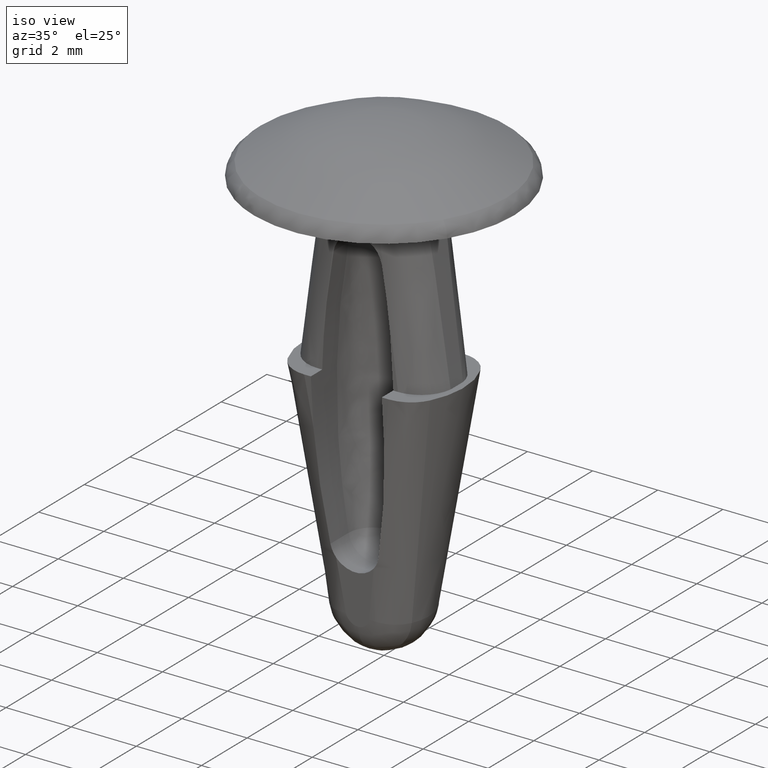
[diagram: clean part render]
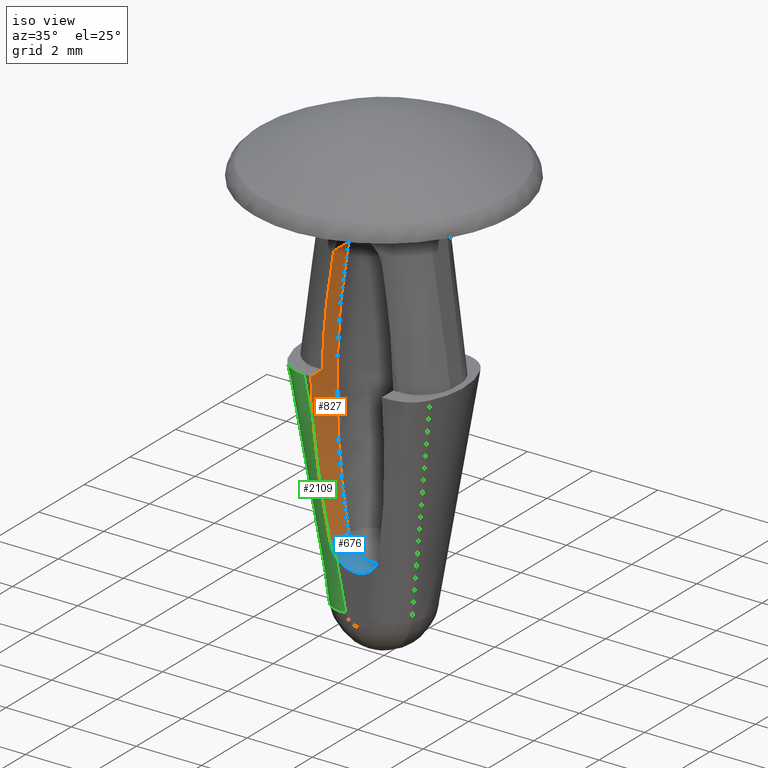
[diagram: same view with three faces highlighted in distinct colors, each labeled with its STEP entity id]
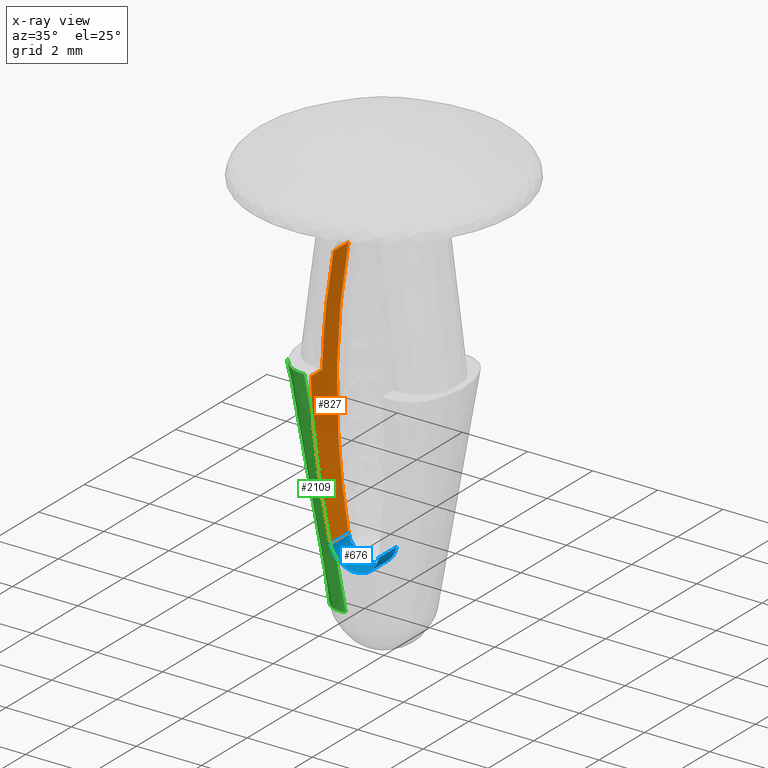
[diagram: x-ray of the same camera — body ghosted, the three highlighted faces saturated]
A machine part, iso view with three faces highlighted in distinct colors.
The next image is the same camera in x-ray (body ghosted, the three faces saturated) — at least one of them is partly hidden behind the body in this view.
Their STEP definitions:

[orange] entity #827 — the highlighted face is a freeform B-spline surface patch.
#444=CARTESIAN_POINT('',(-0.738017438590745,-0.500000000000000,-1.816457897339955));
#445=VERTEX_POINT('',#444);
#508=CARTESIAN_POINT('',(-0.738017720184995,-0.500000000000000,-9.883538546413352));
#509=VERTEX_POINT('',#508);
#510=CARTESIAN_POINT('',(-0.738017438590744,-0.500000000000000,-1.816457897339955));
#511=CARTESIAN_POINT('',(-1.467864544828203,-0.500000000000000,-5.849998196400194));
#512=CARTESIAN_POINT('',(-0.738017720185002,-0.500000000000000,-9.883538546413350));
#520=(BOUNDED_CURVE()B_SPLINE_CURVE(2,(#510,#511,#512),.UNSPECIFIED.,.F.,.U.)CURVE()GEOMETRIC_REPRESENTATION_ITEM()QUASI_UNIFORM_CURVE()RATIONAL_B_SPLINE_CURVE((1.0,0.984020867852005,1.0))REPRESENTATION_ITEM(''));
#521=EDGE_CURVE('',#445,#509,#520,.T.);
#626=CARTESIAN_POINT('',(-0.738015949811334,-1.293734289096232,-9.883538226078059));
#627=VERTEX_POINT('',#626);
#628=CARTESIAN_POINT('',(-0.738015949811334,-1.293734289096232,-9.883538226078059));
#629=CARTESIAN_POINT('',(-0.738017720184995,-0.500000000000000,-9.883538546413352));
#630=QUASI_UNIFORM_CURVE('',1,(#628,#629),.UNSPECIFIED.,.F.,.U.);
#631=EDGE_CURVE('',#627,#509,#630,.T.);
#753=CARTESIAN_POINT('',(-0.662859083940141,-1.678751025000000,-1.421161328844831));
#754=CARTESIAN_POINT('',(-0.662859083940141,-0.470531224375000,-1.421161328844831));
#755=CARTESIAN_POINT('',(-1.545794041233473,-1.678751025000000,-5.850238057530425));
#756=CARTESIAN_POINT('',(-1.545794041233473,-0.470531224375000,-5.850238057530425));
#757=CARTESIAN_POINT('',(-0.662767410250872,-1.678751025000000,-10.279296510110429));
#758=CARTESIAN_POINT('',(-0.662767410250872,-0.470531224375000,-10.279296510110429));
#766=(BOUNDED_SURFACE()B_SPLINE_SURFACE(1,2,((#753,#755,#757),(#754,#756,#758)),.UNSPECIFIED.,.F.,.F.,.U.)B_SPLINE_SURFACE_WITH_KNOTS((2,2),(3,3),(0.0,1.0),(0.347871889227629,9.292402754670382),.UNSPECIFIED.)GEOMETRIC_REPRESENTATION_ITEM()RATIONAL_B_SPLINE_SURFACE(((0.998396413473935,0.978529512680827,0.997175293409681),(0.998396413473935,0.978529512680827,0.997175293409681)))REPRESENTATION_ITEM('')SURFACE());
#767=CARTESIAN_POINT('',(-0.738017438590745,-1.149993999998600,-1.816457897339955));
#768=VERTEX_POINT('',#767);
#769=CARTESIAN_POINT('',(-1.090674782265978,-1.149993999998600,-5.199997000000000));
#770=VERTEX_POINT('',#769);
#771=CARTESIAN_POINT('',(-0.738017438590745,-1.149993999998600,-1.816457897339955));
#772=CARTESIAN_POINT('',(-1.041731498585435,-1.149993999998600,-3.494950406127401));
#773=CARTESIAN_POINT('',(-1.090674782265981,-1.149993999998600,-5.199997000000011));
#781=(BOUNDED_CURVE()B_SPLINE_CURVE(2,(#771,#772,#773),.UNSPECIFIED.,.F.,.U.)CURVE()GEOMETRIC_REPRESENTATION_ITEM()QUASI_UNIFORM_CURVE()RATIONAL_B_SPLINE_CURVE((1.0,0.997177168979135,1.0))REPRESENTATION_ITEM(''));
#782=EDGE_CURVE('',#768,#770,#781,.T.);
#783=ORIENTED_EDGE('',*,*,#782,.T.);
#784=CARTESIAN_POINT('',(-1.090674782265766,-1.650001000000000,-5.199997000000000));
#785=VERTEX_POINT('',#784);
#786=CARTESIAN_POINT('',(-1.090674782265978,-1.149993999998600,-5.199997000000000));
#787=CARTESIAN_POINT('',(-1.090674782265766,-1.650001000000000,-5.199997000000000));
#788=QUASI_UNIFORM_CURVE('',1,(#786,#787),.UNSPECIFIED.,.F.,.U.);
#789=EDGE_CURVE('',#770,#785,#788,.T.);
#790=ORIENTED_EDGE('',*,*,#789,.T.);
#791=CARTESIAN_POINT('',(-1.085657117991400,-1.541224836504675,-6.656051020149160));
#792=VERTEX_POINT('',#791);
#793=CARTESIAN_POINT('',(-1.085657117991400,-1.541224836504675,-6.656051020149160));
#794=CARTESIAN_POINT('',(-1.111575079559779,-1.595606891748133,-5.928104679572669));
#795=CARTESIAN_POINT('',(-1.090674782265766,-1.650001000000000,-5.199997000000000));
#803=(BOUNDED_CURVE()B_SPLINE_CURVE(2,(#793,#794,#795),.UNSPECIFIED.,.F.,.U.)CURVE()GEOMETRIC_REPRESENTATION_ITEM()QUASI_UNIFORM_CURVE()RATIONAL_B_SPLINE_CURVE((1.0,0.999483454069558,1.0))REPRESENTATION_ITEM(''));
#804=EDGE_CURVE('',#792,#785,#803,.T.);
#805=ORIENTED_EDGE('',*,*,#804,.F.);
#806=CARTESIAN_POINT('',(-0.738015949811334,-1.293734289096232,-9.883538226078059));
#807=CARTESIAN_POINT('',(-0.786271500100103,-1.312516562312461,-9.616851999836625));
#808=CARTESIAN_POINT('',(-0.873124204224920,-1.351043695666410,-9.082240918134502));
#809=CARTESIAN_POINT('',(-0.940724161717931,-1.392409871918340,-8.545230528838852));
#810=CARTESIAN_POINT('',(-0.998701382413399,-1.434791159777087,-8.006990412273982));
#811=CARTESIAN_POINT('',(-1.022880425462399,-1.456494093103143,-7.737184822683948));
#812=CARTESIAN_POINT('',(-1.061531617484356,-1.499593783869857,-7.197135421353046));
#813=CARTESIAN_POINT('',(-1.076017414497608,-1.520998771265125,-6.926792949716260));
#814=CARTESIAN_POINT('',(-1.085657117991400,-1.541224836504675,-6.656051020149160));
#815=B_SPLINE_CURVE_WITH_KNOTS('',3,(#806,#807,#808,#809,#810,#811,#812,#813,#814),.UNSPECIFIED.,.F.,.U.,(4,1,2,2,4),(0.0,0.250000000000000,0.500000000000000,0.750000000000000,1.0),.UNSPECIFIED.);
#816=EDGE_CURVE('',#627,#792,#815,.T.);
#817=ORIENTED_EDGE('',*,*,#816,.F.);
#818=ORIENTED_EDGE('',*,*,#631,.T.);
#819=ORIENTED_EDGE('',*,*,#521,.F.);
#820=CARTESIAN_POINT('',(-0.738017438590745,-1.149993999998600,-1.816457897339955));
#821=CARTESIAN_POINT('',(-0.738017438590745,-0.500000000000000,-1.816457897339955));
#822=QUASI_UNIFORM_CURVE('',1,(#820,#821),.UNSPECIFIED.,.F.,.U.);
#823=EDGE_CURVE('',#768,#445,#822,.T.);
#824=ORIENTED_EDGE('',*,*,#823,.F.);
#825=EDGE_LOOP('',(#783,#790,#805,#817,#818,#819,#824));
#826=FACE_OUTER_BOUND('',#825,.T.);
#827=ADVANCED_FACE('',(#826),#766,.F.);

[blue] entity #676 — the highlighted face is a freeform B-spline surface patch.
#508=CARTESIAN_POINT('',(-0.738017720184995,-0.500000000000000,-9.883538546413352));
#509=VERTEX_POINT('',#508);
#523=CARTESIAN_POINT('',(0.738015690511051,-0.500000000000000,-9.883539659126029));
#524=VERTEX_POINT('',#523);
#581=CARTESIAN_POINT('',(-0.738017720184995,-0.500000000000000,-9.883538546413352));
#582=CARTESIAN_POINT('',(-0.626473749798611,-0.500000000000000,-10.499999687899200));
#583=CARTESIAN_POINT('',(-0.000001613346005,-0.500000000000000,-10.500000160167300));
#584=CARTESIAN_POINT('',(0.626470523106601,-0.500000000000000,-10.500000632435391));
#585=CARTESIAN_POINT('',(0.738015690511051,-0.500000000000000,-9.883539659126029));
#593=(BOUNDED_CURVE()B_SPLINE_CURVE(2,(#581,#582,#583,#584,#585),.UNSPECIFIED.,.F.,.U.)B_SPLINE_CURVE_WITH_KNOTS((3,2,3),(0.0,0.500000000000000,1.0),.UNSPECIFIED.)CURVE()GEOMETRIC_REPRESENTATION_ITEM()RATIONAL_B_SPLINE_CURVE((1.0,0.767480267977449,1.0,0.767480267977449,1.0))REPRESENTATION_ITEM(''));
#594=EDGE_CURVE('',#509,#524,#593,.T.);
#600=CARTESIAN_POINT('',(-0.741768395485807,-1.313577646323638,-9.860813570732155));
#601=CARTESIAN_POINT('',(-0.741768395485807,-0.479660558841909,-9.860813570732155));
#602=CARTESIAN_POINT('',(-0.645439628078285,-1.313577646323638,-10.505622999459188));
#603=CARTESIAN_POINT('',(-0.645439628078285,-0.479660558841909,-10.505622999459188));
#604=CARTESIAN_POINT('',(0.006500932885356,-1.313577646323638,-10.499971824718511));
#605=CARTESIAN_POINT('',(0.006500932885356,-0.479660558841909,-10.499971824718511));
#606=CARTESIAN_POINT('',(0.658441493848996,-1.313577646323638,-10.494320649977841));
#607=CARTESIAN_POINT('',(0.658441493848996,-0.479660558841909,-10.494320649977841));
#608=CARTESIAN_POINT('',(0.743577905463382,-1.313577646323638,-9.847938238225353));
#609=CARTESIAN_POINT('',(0.743577905463382,-0.479660558841909,-9.847938238225353));
#617=(BOUNDED_SURFACE()B_SPLINE_SURFACE(1,2,((#600,#602,#604,#606,#608),(#601,#603,#605,#607,#609)),.UNSPECIFIED.,.F.,.F.,.U.)B_SPLINE_SURFACE_WITH_KNOTS((2,2),(3,2,3),(0.0,1.0),(0.0,1.0,2.0),.UNSPECIFIED.)GEOMETRIC_REPRESENTATION_ITEM()RATIONAL_B_SPLINE_SURFACE(((1.0,0.754709580222772,1.0,0.754709580222772,1.0),(1.0,0.754709580222772,1.0,0.754709580222772,1.0)))REPRESENTATION_ITEM('')SURFACE());
#618=CARTESIAN_POINT('',(0.738015690511051,-1.293734209621532,-9.883539659126029));
#619=VERTEX_POINT('',#618);
#620=CARTESIAN_POINT('',(0.738015690511051,-1.293734209621532,-9.883539659126029));
#621=CARTESIAN_POINT('',(0.738015690511051,-0.500000000000000,-9.883539659126029));
#622=QUASI_UNIFORM_CURVE('',1,(#620,#621),.UNSPECIFIED.,.F.,.U.);
#623=EDGE_CURVE('',#619,#524,#622,.T.);
#624=ORIENTED_EDGE('',*,*,#623,.T.);
#625=ORIENTED_EDGE('',*,*,#594,.F.);
#626=CARTESIAN_POINT('',(-0.738015949811334,-1.293734289096232,-9.883538226078059));
#627=VERTEX_POINT('',#626);
#628=CARTESIAN_POINT('',(-0.738015949811334,-1.293734289096232,-9.883538226078059));
#629=CARTESIAN_POINT('',(-0.738017720184995,-0.500000000000000,-9.883538546413352));
#630=QUASI_UNIFORM_CURVE('',1,(#628,#629),.UNSPECIFIED.,.F.,.U.);
#631=EDGE_CURVE('',#627,#509,#630,.T.);
#632=ORIENTED_EDGE('',*,*,#631,.F.);
#633=CARTESIAN_POINT('',(-0.574505067719825,-1.274070228132522,-10.232124389737120));
#634=VERTEX_POINT('',#633);
#635=CARTESIAN_POINT('',(-0.574505067719825,-1.274070228132522,-10.232124389737120));
#636=CARTESIAN_POINT('',(-0.616512122123696,-1.277809725575460,-10.182068291873740));
#637=CARTESIAN_POINT('',(-0.651201909904588,-1.280179575877374,-10.127657145131680));
#638=CARTESIAN_POINT('',(-0.692505161061631,-1.284446928842074,-10.039799609361650));
#639=CARTESIAN_POINT('',(-0.704509036341137,-1.285983534157370,-10.009282993286080));
#640=CARTESIAN_POINT('',(-0.724332783586732,-1.289495509157599,-9.947237601676761));
#641=CARTESIAN_POINT('',(-0.732203095514177,-1.291471731963233,-9.915663702888903));
#642=CARTESIAN_POINT('',(-0.738015949811334,-1.293734289096232,-9.883538226078059));
#643=B_SPLINE_CURVE_WITH_KNOTS('',3,(#635,#636,#637,#638,#639,#640,#641,#642),.UNSPECIFIED.,.F.,.U.,(4,2,2,4),(0.0,0.499999999999994,0.749999999999997,1.0),.UNSPECIFIED.);
#644=EDGE_CURVE('',#634,#627,#643,.T.);
#645=ORIENTED_EDGE('',*,*,#644,.F.);
#646=CARTESIAN_POINT('',(0.574505067722556,-1.274070228133948,-10.232124389718020));
#647=VERTEX_POINT('',#646);
#648=CARTESIAN_POINT('',(0.574505067722556,-1.274070228133948,-10.232124389718020));
#649=CARTESIAN_POINT('',(0.349703978257832,-1.254058277494877,-10.499999999999011));
#650=CARTESIAN_POINT('',(2.123818E-012,-1.254058277494803,-10.500000000000000));
#651=CARTESIAN_POINT('',(-0.349703978253584,-1.254058277494729,-10.500000000000991));
#652=CARTESIAN_POINT('',(-0.574505067719825,-1.274070228132522,-10.232124389737120));
#660=(BOUNDED_CURVE()B_SPLINE_CURVE(2,(#648,#649,#650,#651,#652),.UNSPECIFIED.,.F.,.U.)B_SPLINE_CURVE_WITH_KNOTS((3,2,3),(0.0,0.500000000000000,1.0),.UNSPECIFIED.)CURVE()GEOMETRIC_REPRESENTATION_ITEM()RATIONAL_B_SPLINE_CURVE((1.0,0.906320175110975,1.0,0.906320175110975,1.0))REPRESENTATION_ITEM(''));
#661=EDGE_CURVE('',#647,#634,#660,.T.);
#662=ORIENTED_EDGE('',*,*,#661,.F.);
#663=CARTESIAN_POINT('',(0.738015690511051,-1.293734209621532,-9.883539659126029));
#664=CARTESIAN_POINT('',(0.726389083026882,-1.289208788557963,-9.947794868454009));
#665=CARTESIAN_POINT('',(0.706750279403987,-1.285935250864256,-10.009215664159591));
#666=CARTESIAN_POINT('',(0.665609266087684,-1.281660095465516,-10.097147640628661));
#667=CARTESIAN_POINT('',(0.649817754740876,-1.280318315440982,-10.125897088998171));
#668=CARTESIAN_POINT('',(0.614768571092984,-1.277459633829956,-10.180837950847019));
#669=CARTESIAN_POINT('',(0.595508167028977,-1.275939938763443,-10.207096850670640));
#670=CARTESIAN_POINT('',(0.574505067722556,-1.274070228133948,-10.232124389718020));
#671=B_SPLINE_CURVE_WITH_KNOTS('',3,(#663,#664,#665,#666,#667,#668,#669,#670),.UNSPECIFIED.,.F.,.U.,(4,2,2,4),(0.0,0.500000000000000,0.750000000000000,1.0),.UNSPECIFIED.);
#672=EDGE_CURVE('',#619,#647,#671,.T.);
#673=ORIENTED_EDGE('',*,*,#672,.F.);
#674=EDGE_LOOP('',(#624,#625,#632,#645,#662,#673));
#675=FACE_OUTER_BOUND('',#674,.T.);
#676=ADVANCED_FACE('',(#675),#617,.F.);

[green] entity #2109 — the highlighted face is a freeform B-spline surface patch.
#283=CARTESIAN_POINT('',(-1.256781387603042,-0.575183798429341,-11.822860999999900));
#284=VERTEX_POINT('',#283);
#315=CARTESIAN_POINT('',(-0.359079276135008,-1.161558786309562,-11.738178031591399));
#316=VERTEX_POINT('',#315);
#330=CARTESIAN_POINT('',(-1.256781387603042,-0.575183798429341,-11.822860999999900));
#331=CARTESIAN_POINT('',(-0.990568348631545,-1.154843983880090,-11.828064278179118));
#332=CARTESIAN_POINT('',(-0.359079276135008,-1.161558786309562,-11.738178031591399));
#340=(BOUNDED_CURVE()B_SPLINE_CURVE(2,(#330,#331,#332),.UNSPECIFIED.,.F.,.U.)CURVE()GEOMETRIC_REPRESENTATION_ITEM()QUASI_UNIFORM_CURVE()RATIONAL_B_SPLINE_CURVE((1.0,0.843078505104317,1.0))REPRESENTATION_ITEM(''));
#341=EDGE_CURVE('',#284,#316,#340,.T.);
#626=CARTESIAN_POINT('',(-0.738015949811334,-1.293734289096232,-9.883538226078059));
#627=VERTEX_POINT('',#626);
#633=CARTESIAN_POINT('',(-0.574505067719825,-1.274070228132522,-10.232124389737120));
#634=VERTEX_POINT('',#633);
#635=CARTESIAN_POINT('',(-0.574505067719825,-1.274070228132522,-10.232124389737120));
#636=CARTESIAN_POINT('',(-0.616512122123696,-1.277809725575460,-10.182068291873740));
#637=CARTESIAN_POINT('',(-0.651201909904588,-1.280179575877374,-10.127657145131680));
#638=CARTESIAN_POINT('',(-0.692505161061631,-1.284446928842074,-10.039799609361650));
#639=CARTESIAN_POINT('',(-0.704509036341137,-1.285983534157370,-10.009282993286080));
#640=CARTESIAN_POINT('',(-0.724332783586732,-1.289495509157599,-9.947237601676761));
#641=CARTESIAN_POINT('',(-0.732203095514177,-1.291471731963233,-9.915663702888903));
#642=CARTESIAN_POINT('',(-0.738015949811334,-1.293734289096232,-9.883538226078059));
#643=B_SPLINE_CURVE_WITH_KNOTS('',3,(#635,#636,#637,#638,#639,#640,#641,#642),.UNSPECIFIED.,.F.,.U.,(4,2,2,4),(0.0,0.499999999999994,0.749999999999997,1.0),.UNSPECIFIED.);
#644=EDGE_CURVE('',#634,#627,#643,.T.);
#791=CARTESIAN_POINT('',(-1.085657117991400,-1.541224836504675,-6.656051020149160));
#792=VERTEX_POINT('',#791);
#806=CARTESIAN_POINT('',(-0.738015949811334,-1.293734289096232,-9.883538226078059));
#807=CARTESIAN_POINT('',(-0.786271500100103,-1.312516562312461,-9.616851999836625));
#808=CARTESIAN_POINT('',(-0.873124204224920,-1.351043695666410,-9.082240918134502));
#809=CARTESIAN_POINT('',(-0.940724161717931,-1.392409871918340,-8.545230528838852));
#810=CARTESIAN_POINT('',(-0.998701382413399,-1.434791159777087,-8.006990412273982));
#811=CARTESIAN_POINT('',(-1.022880425462399,-1.456494093103143,-7.737184822683948));
#812=CARTESIAN_POINT('',(-1.061531617484356,-1.499593783869857,-7.197135421353046));
#813=CARTESIAN_POINT('',(-1.076017414497608,-1.520998771265125,-6.926792949716260));
#814=CARTESIAN_POINT('',(-1.085657117991400,-1.541224836504675,-6.656051020149160));
#815=B_SPLINE_CURVE_WITH_KNOTS('',3,(#806,#807,#808,#809,#810,#811,#812,#813,#814),.UNSPECIFIED.,.F.,.U.,(4,1,2,2,4),(0.0,0.250000000000000,0.500000000000000,0.750000000000000,1.0),.UNSPECIFIED.);
#816=EDGE_CURVE('',#627,#792,#815,.T.);
#1932=CARTESIAN_POINT('',(-2.187187684470745,-1.103954225908190,-5.199997000000000));
#1933=VERTEX_POINT('',#1932);
#1934=CARTESIAN_POINT('',(-1.256781387603042,-0.575183798429341,-11.822860999999900));
#1935=CARTESIAN_POINT('',(-1.293865052893477,-0.601038891626759,-11.546996432271341));
#1936=CARTESIAN_POINT('',(-1.331646610852896,-0.625238291343110,-11.271087045080250));
#1937=CARTESIAN_POINT('',(-1.407797652813216,-0.672327471021337,-10.719237894178830));
#1938=CARTESIAN_POINT('',(-1.446187087985807,-0.695163103373907,-10.443296227359671));
#1939=CARTESIAN_POINT('',(-1.561839479392365,-0.762613472333986,-9.615448003011256));
#1940=CARTESIAN_POINT('',(-1.639571894436228,-0.806199666844263,-9.063523113437693));
#1941=CARTESIAN_POINT('',(-1.873420227966273,-0.935588418165569,-7.407744757969434));
#1942=CARTESIAN_POINT('',(-2.030211009989235,-1.019958204713285,-6.303872218204051));
#1943=CARTESIAN_POINT('',(-2.187187684470745,-1.103954225908190,-5.199997000000000));
#1944=B_SPLINE_CURVE_WITH_KNOTS('',3,(#1934,#1935,#1936,#1937,#1938,#1939,#1940,#1941,#1942,#1943),.UNSPECIFIED.,.F.,.U.,(4,2,2,2,4),(0.0,0.125000000000000,0.250000000000000,0.500000000000000,1.0),.UNSPECIFIED.);
#1945=EDGE_CURVE('',#284,#1933,#1944,.T.);
#2011=CARTESIAN_POINT('',(-2.195223804361347,-1.102346529629700,-5.159997909912452));
#2012=CARTESIAN_POINT('',(-2.037296387382193,-1.017850529550046,-6.270480051047443));
#2013=CARTESIAN_POINT('',(-1.879553213919495,-0.932979341223634,-7.380959564272640));
#2014=CARTESIAN_POINT('',(-1.644265156796827,-0.802814562592337,-9.046672145562420));
#2015=CARTESIAN_POINT('',(-1.566051453459400,-0.758966596056784,-9.601908409222265));
#2016=CARTESIAN_POINT('',(-1.410875502535678,-0.668475357390508,-10.712373277356269));
#2017=CARTESIAN_POINT('',(-1.333693902465171,-0.622409880371776,-11.267616934436433));
#2018=CARTESIAN_POINT('',(-1.257538704797378,-0.569266549861519,-11.833854617661572));
#2019=CARTESIAN_POINT('',(-1.256054249764172,-0.568230653601339,-11.844892004532015));
#2020=CARTESIAN_POINT('',(-1.254569796510608,-0.567194758583046,-11.855929378170266));
#2021=CARTESIAN_POINT('',(-2.194049872886089,-1.104669917165611,-5.160003721214374));
#2022=CARTESIAN_POINT('',(-2.036124778868254,-1.020179056321934,-6.270486571869738));
#2023=CARTESIAN_POINT('',(-1.878384407363199,-0.935314405704968,-7.380966968882503));
#2024=CARTESIAN_POINT('',(-1.643105120662424,-0.805168930231311,-9.046682215804003));
#2025=CARTESIAN_POINT('',(-1.564895050756298,-0.761328920022997,-9.601919580247106));
#2026=CARTESIAN_POINT('',(-1.409730968304869,-0.670862861352422,-10.712387972275106));
#2027=CARTESIAN_POINT('',(-1.332556578704456,-0.624812348385121,-11.267633726207571));
#2028=CARTESIAN_POINT('',(-1.256419463564774,-0.571705043964671,-11.833876762332737));
#2029=CARTESIAN_POINT('',(-1.254935337759345,-0.570669833728473,-11.844914426427549));
#2030=CARTESIAN_POINT('',(-1.253451212844235,-0.569634624113293,-11.855952083900895));
#2031=CARTESIAN_POINT('',(-1.917054122734444,-1.652886305400978,-5.161374930665805));
#2032=CARTESIAN_POINT('',(-1.759523289958776,-1.569913856306505,-6.272026052963954));
#2033=CARTESIAN_POINT('',(-1.602271326179686,-1.486938492026657,-7.382716197302443));
#2034=CARTESIAN_POINT('',(-1.368522496182717,-1.362451954550468,-9.049065859969486));
#2035=CARTESIAN_POINT('',(-1.290948525265748,-1.320952691993627,-9.604565945076020));
#2036=CARTESIAN_POINT('',(-1.137886927811193,-1.237930849561447,-10.715878235828928));
#2037=CARTESIAN_POINT('',(-1.061961985417764,-1.196412870075667,-11.271628861665285));
#2038=CARTESIAN_POINT('',(-0.989146027985710,-1.154014449304396,-11.839164882687742));
#2039=CARTESIAN_POINT('',(-0.987721331530787,-1.153184893779790,-11.850269132164192));
#2040=CARTESIAN_POINT('',(-0.986296432127122,-1.152355220084575,-11.861374963446677));
#2041=CARTESIAN_POINT('',(-1.308973408840719,-1.659342045991886,-5.074959793944852));
#2042=CARTESIAN_POINT('',(-1.150276992902306,-1.576382212293348,-6.185442049304328));
#2043=CARTESIAN_POINT('',(-0.991574658737432,-1.493422441238056,-7.295923466134972));
#2044=CARTESIAN_POINT('',(-0.753478094074949,-1.368983245700212,-8.961639419931776));
#2045=CARTESIAN_POINT('',(-0.674105622806314,-1.327503588137643,-9.516877076856245));
#2046=CARTESIAN_POINT('',(-0.515319006932339,-1.244544720449199,-10.627346401415139));
#2047=CARTESIAN_POINT('',(-0.435913457758328,-1.203065419152925,-11.182579289436630));
#2048=CARTESIAN_POINT('',(-0.354838872017242,-1.160762467902926,-11.748837376249657));
#2049=CARTESIAN_POINT('',(-0.353258501081776,-1.159937864804079,-11.759875333634096));
#2050=CARTESIAN_POINT('',(-0.351678131094864,-1.159113262200166,-11.770913284393455));
#2051=CARTESIAN_POINT('',(-1.306394972703192,-1.659369420178326,-5.074593369050489));
#2052=CARTESIAN_POINT('',(-1.147695051322763,-1.576409624716459,-6.185075112582261));
#2053=CARTESIAN_POINT('',(-0.988988193097803,-1.493449902517507,-7.295555875432580));
#2054=CARTESIAN_POINT('',(-0.750878350948984,-1.369010852941596,-8.961269875414777));
#2055=CARTESIAN_POINT('',(-0.671500408977530,-1.327531255612064,-9.516506726072921));
#2056=CARTESIAN_POINT('',(-0.512696472465105,-1.244572581030805,-10.626973465741113));
#2057=CARTESIAN_POINT('',(-0.433280775242957,-1.203093394699331,-11.182204814868840));
#2058=CARTESIAN_POINT('',(-0.352181251292531,-1.160790740757661,-11.748458921977358));
#2059=CARTESIAN_POINT('',(-0.350600419015343,-1.159966156376593,-11.759496628809714));
#2060=CARTESIAN_POINT('',(-0.349019588634328,-1.159141572984593,-11.770534322402572));
#2068=(BOUNDED_SURFACE()B_SPLINE_SURFACE(3,2,((#2011,#2021,#2031,#2041,#2051),(#2012,#2022,#2032,#2042,#2052),(#2013,#2023,#2033,#2043,#2053),(#2014,#2024,#2034,#2044,#2054),(#2015,#2025,#2035,#2045,#2055),(#2016,#2026,#2036,#2046,#2056),(#2017,#2027,#2037,#2047,#2057),(#2018,#2028,#2038,#2048,#2058),(#2019,#2029,#2039,#2049,#2059),(#2020,#2030,#2040,#2050,#2060)),.UNSPECIFIED.,.F.,.F.,.U.)B_SPLINE_SURFACE_WITH_KNOTS((4,2,2,2,4),(3,1,1,3),(0.0,3.380489949517858,5.070734924276787,6.760979899035716,6.794583058697318),(0.0,0.005839645090528,1.173746150656787,1.179588848465488),.UNSPECIFIED.)GEOMETRIC_REPRESENTATION_ITEM()RATIONAL_B_SPLINE_SURFACE(((1.001469126686543,1.000734563343271,0.853090163176423,1.000734947341756,1.001469894683513),(1.001473831878709,1.000736915939355,0.852619653029300,1.000737301167677,1.001474602335354),(1.001479132039489,1.000739566019745,0.852089647167697,1.000739952633416,1.001479905266832),(1.001495792465438,1.000747896232719,0.850423636686792,1.000748287201072,1.001496574402143),(1.001502685993804,1.000751342996902,0.849734297137861,1.000751735767077,1.001503471534153),(1.001524665633868,1.000762332816934,0.847536375498588,1.000762731332119,1.001525462664238),(1.001539050751130,1.000769525375565,0.846097891500592,1.000769927650714,1.001539855301428),(1.001569849728377,1.000784924864189,0.843018053142776,1.000785335189535,1.001570670379071),(1.001570450096199,1.000785225048099,0.842958017517826,1.000785635530370,1.001571271060739),(1.001571050464021,1.000785525232010,0.842897981892875,1.000785935871204,1.001571871742408)))REPRESENTATION_ITEM('')SURFACE());
#2069=ORIENTED_EDGE('',*,*,#644,.T.);
#2070=ORIENTED_EDGE('',*,*,#816,.T.);
#2071=CARTESIAN_POINT('',(-1.293739675119476,-1.650001000000000,-5.199997000000000));
#2072=VERTEX_POINT('',#2071);
#2073=CARTESIAN_POINT('',(-1.293739675119476,-1.650001000000000,-5.199997000000000));
#2074=CARTESIAN_POINT('',(-1.224380542665779,-1.613742260575769,-5.685348584462265));
#2075=CARTESIAN_POINT('',(-1.155020286983688,-1.577483533074261,-6.170700009329634));
#2076=CARTESIAN_POINT('',(-1.085657117991400,-1.541224836504675,-6.656051020149160));
#2077=B_SPLINE_CURVE_WITH_KNOTS('',3,(#2073,#2074,#2075,#2076),.UNSPECIFIED.,.F.,.U.,(4,4),(6.148487E-018,0.001474864032314),.UNSPECIFIED.);
#2078=EDGE_CURVE('',#2072,#792,#2077,.T.);
#2079=ORIENTED_EDGE('',*,*,#2078,.F.);
#2080=CARTESIAN_POINT('',(-2.187187684470745,-1.103954225908190,-5.199997000000000));
#2081=CARTESIAN_POINT('',(-2.145433902290689,-1.186678088928110,-5.199997000000001));
#2082=CARTESIAN_POINT('',(-2.093238063055980,-1.261683503075187,-5.199997000000000));
#2083=CARTESIAN_POINT('',(-1.999709827227516,-1.362930765345181,-5.199997000000001));
#2084=CARTESIAN_POINT('',(-1.965784963604047,-1.394854681691468,-5.199996999999999));
#2085=CARTESIAN_POINT('',(-1.894791887200306,-1.452915822920150,-5.199997000000001));
#2086=CARTESIAN_POINT('',(-1.857510243015548,-1.479322420311286,-5.199996999999999));
#2087=CARTESIAN_POINT('',(-1.779420096422276,-1.526951395428237,-5.199997000000001));
#2088=CARTESIAN_POINT('',(-1.738382486798587,-1.548270714844546,-5.199997000000000));
#2089=CARTESIAN_POINT('',(-1.653668719037516,-1.585049688632326,-5.199997000000000));
#2090=CARTESIAN_POINT('',(-1.567285761656578,-1.615629748637204,-5.199997000000000));
#2091=CARTESIAN_POINT('',(-1.477686397677257,-1.634264954111000,-5.199997000000001));
#2092=CARTESIAN_POINT('',(-1.386448341639161,-1.646814505403767,-5.199996999999999));
#2093=CARTESIAN_POINT('',(-1.340059704070638,-1.650001000000001,-5.199997000000001));
#2094=CARTESIAN_POINT('',(-1.293739675119476,-1.650001000000000,-5.199997000000000));
#2095=B_SPLINE_CURVE_WITH_KNOTS('',3,(#2080,#2081,#2082,#2083,#2084,#2085,#2086,#2087,#2088,#2089,#2090,#2091,#2092,#2093,#2094),.UNSPECIFIED.,.F.,.U.,(4,2,2,2,2,1,2,4),(0.0,0.250000000000000,0.375000000000000,0.500000000000000,0.625000000000000,0.750000000000000,0.875000000000000,1.0),.UNSPECIFIED.);
#2096=EDGE_CURVE('',#1933,#2072,#2095,.T.);
#2097=ORIENTED_EDGE('',*,*,#2096,.F.);
#2098=ORIENTED_EDGE('',*,*,#1945,.F.);
#2099=ORIENTED_EDGE('',*,*,#341,.T.);
#2100=CARTESIAN_POINT('',(-0.574505067719825,-1.274070228132522,-10.232124389737120));
#2101=CARTESIAN_POINT('',(-0.502728952303088,-1.236566068958736,-10.734146891566240));
#2102=CARTESIAN_POINT('',(-0.430927571096161,-1.199062178288356,-11.236165799267271));
#2103=CARTESIAN_POINT('',(-0.359079276135008,-1.161558786309562,-11.738178031591399));
#2104=B_SPLINE_CURVE_WITH_KNOTS('',3,(#2100,#2101,#2102,#2103),.UNSPECIFIED.,.F.,.U.,(4,4),(0.005097149047127,0.006622686553908),.UNSPECIFIED.);
#2105=EDGE_CURVE('',#634,#316,#2104,.T.);
#2106=ORIENTED_EDGE('',*,*,#2105,.F.);
#2107=EDGE_LOOP('',(#2069,#2070,#2079,#2097,#2098,#2099,#2106));
#2108=FACE_OUTER_BOUND('',#2107,.T.);
#2109=ADVANCED_FACE('',(#2108),#2068,.T.);